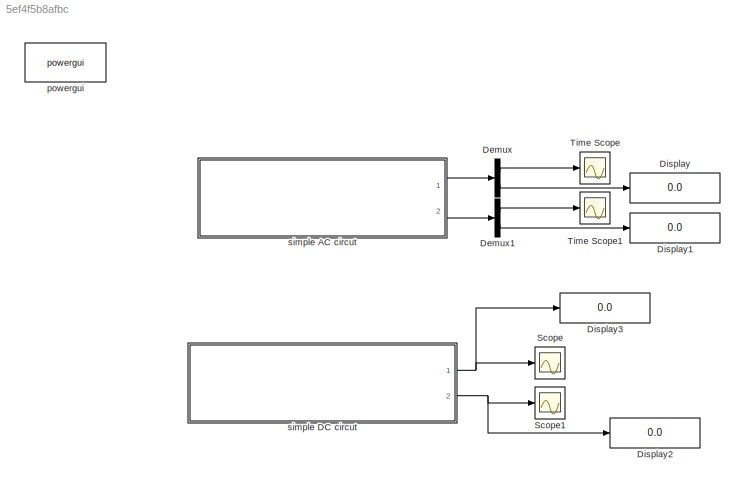
MODEL slx_5ef4f5b8afbc
KIND model
CONFIG AbsTol = auto
CONFIG EnableMultiTasking = off
CONFIG FixedStep = 1e-4
CONFIG MaxStep = 1e-4
CONFIG MinStep = auto
CONFIG RelTol = 1e-3
CONFIG SampleTimeConstraint = Unconstrained
CONFIG SolverName = FixedStepDiscrete
CONFIG StartTime = 0.0
CONFIG StopTime = 0.1
BLOCK [Demux] Demux
  Outputs = 2
  Ports = [1, 2]
BLOCK [Demux] Demux1
  Outputs = 2
  Ports = [1, 2]
BLOCK [Display] Display
  Decimation = 1
  Ports = [1]
BLOCK [Display] Display1
  Decimation = 1
  Ports = [1]
BLOCK [Display] Display2
  Decimation = 1
  Ports = [1]
BLOCK [Display] Display3
  Decimation = 1
  Ports = [1]
BLOCK [Scope] Scope
  Floating = off
  NumInputPorts = 1
  Ports = [1]
  ScopeSpecificationString = Simulink.scopes.TimeScopeBlockCfg('CurrentConfiguration', extmgr.ConfigurationSet(extmgr.Configuration('Core','General UI',true),extmgr.Configuration('Core','Source UI',true),extmgr.Configuration('Sources','WiredSimulink',true,'DataLoggingVariableName','ScopeData2'),extmgr.Configuration('Visuals','Time Domain',true),extmgr.Configuration('Tools','Plot Navigation',true),extmgr.Configuration('Tools',...<+40ch>
BLOCK [Scope] Scope1
  Floating = off
  NumInputPorts = 1
  Ports = [1]
  ScopeSpecificationString = Simulink.scopes.TimeScopeBlockCfg('CurrentConfiguration', extmgr.ConfigurationSet(extmgr.Configuration('Core','General UI',true),extmgr.Configuration('Core','Source UI',true),extmgr.Configuration('Sources','WiredSimulink',true,'DataLoggingVariableName','ScopeData3'),extmgr.Configuration('Visuals','Time Domain',true),extmgr.Configuration('Tools','Plot Navigation',true),extmgr.Configuration('Tools',...<+40ch>
BLOCK [Scope] Time Scope
  DefaultConfigurationName = spbscopes.TimeScopeBlockCfg
  Floating = off
  NumInputPorts = 1
  Ports = [1]
  ScopeSpecificationString = spbscopes.TimeScopeBlockCfg('CurrentConfiguration', extmgr.ConfigurationSet(extmgr.Configuration('Core','General UI',true,'FigureColor',[0.156862745098039 0.156862745098039 0.156862745098039]),extmgr.Configuration('Core','Source UI',true),extmgr.Configuration('Sources','WiredSimulink',true),extmgr.Configuration('Visuals','Time Domain',true,'DisplayPropertyDefaults',struct('MinYLimReal','-12.5','Ma...<+1377ch>
  UserDataPersistent = on
BLOCK [Scope] Time Scope1
  DefaultConfigurationName = spbscopes.TimeScopeBlockCfg
  Floating = off
  NumInputPorts = 1
  Ports = [1]
  ScopeSpecificationString = spbscopes.TimeScopeBlockCfg('CurrentConfiguration', extmgr.ConfigurationSet(extmgr.Configuration('Core','General UI',true,'FigureColor',[0.156862745098039 0.156862745098039 0.156862745098039]),extmgr.Configuration('Core','Source UI',true),extmgr.Configuration('Sources','WiredSimulink',true,'DataLoggingVariableName','ScopeData1'),extmgr.Configuration('Visuals','Time Domain',true,'DisplayPropertyDef...<+1475ch>
  UserDataPersistent = on
BLOCK [Reference] powergui  REF=spspowerguiLib/powergui
  Ports = []
  Priority = 1
  SourceBlock = spspowerguiLib/powergui
  SourceProductBaseCode = PS
  SourceType = PSB option menu block
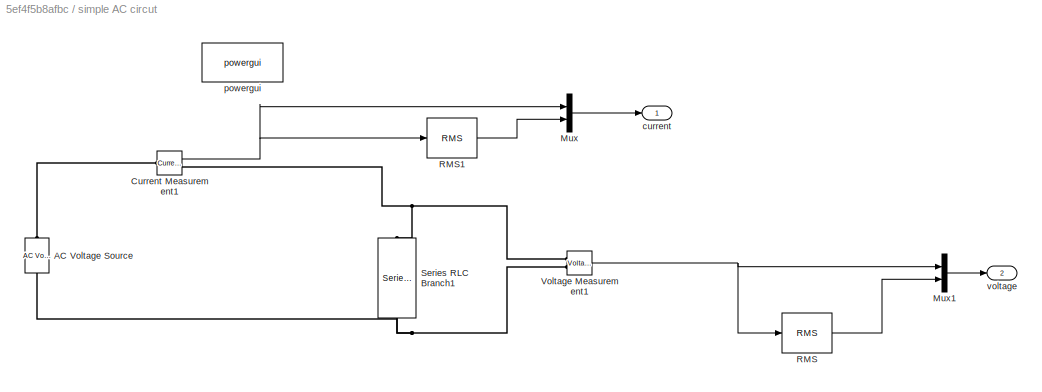
BLOCK [SubSystem] simple AC circut
  Ports = [0, 2]
  RequestExecContextInheritance = off
BLOCK [Reference] simple AC circut/AC Voltage Source  REF=spsACVoltageSourceLib/AC Voltage Source
  Ports = [0, 0, 0, 0, 0, 1, 1]
  SourceBlock = spsACVoltageSourceLib/AC Voltage Source
  SourceProductBaseCode = PS
  SourceType = AC Voltage Source
BLOCK [Reference] simple AC circut/Current Measurement1  REF=spsCurrentMeasurementLib/Current Measurement
  Ports = [0, 1, 0, 0, 0, 1, 1]
  SourceBlock = spsCurrentMeasurementLib/Current Measurement
  SourceProductBaseCode = PS
  SourceType = Current Measurement
  UserDataPersistent = on
BLOCK [Mux] simple AC circut/Mux
  DisplayOption = bar
  Inputs = 2
  Ports = [2, 1]
BLOCK [Mux] simple AC circut/Mux1
  DisplayOption = bar
  Inputs = 2
  Ports = [2, 1]
BLOCK [Reference] simple AC circut/RMS  REF=spsRMSLib/RMS
  Ports = [1, 1]
  SourceBlock = spsRMSLib/RMS
  SourceProductBaseCode = PS
  SourceType = RMS
BLOCK [Reference] simple AC circut/RMS1  REF=spsRMSLib/RMS
  Ports = [1, 1]
  SourceBlock = spsRMSLib/RMS
  SourceProductBaseCode = PS
  SourceType = RMS
BLOCK [Reference] simple AC circut/Series RLC Branch1  REF=spsSeriesRLCBranchLib/Series RLC Branch
  NameLocation = left
  Ports = [0, 0, 0, 0, 0, 1, 1]
  SourceBlock = spsSeriesRLCBranchLib/Series RLC Branch
  SourceProductBaseCode = PS
  SourceType = Series RLC Branch
BLOCK [Reference] simple AC circut/Voltage Measurement1  REF=spsVoltageMeasurementLib/Voltage Measurement
  Ports = [0, 1, 0, 0, 0, 2]
  SourceBlock = spsVoltageMeasurementLib/Voltage Measurement
  SourceProductBaseCode = PS
  SourceType = Voltage Measurement
  UserDataPersistent = on
BLOCK [Outport] simple AC circut/current
BLOCK [Reference] simple AC circut/powergui  REF=spspowerguiLib/powergui
  Ports = []
  Priority = 1
  SourceBlock = spspowerguiLib/powergui
  SourceProductBaseCode = PS
  SourceType = PSB option menu block
BLOCK [Outport] simple AC circut/voltage
  Port = 2
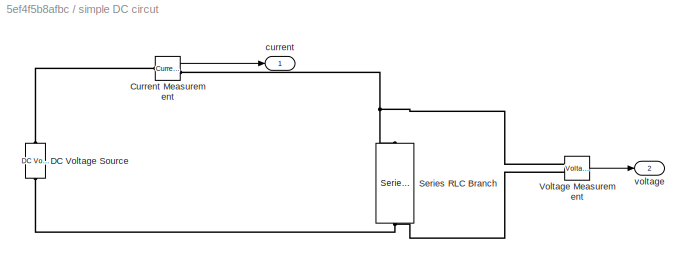
BLOCK [SubSystem] simple DC circut
  Ports = [0, 2]
  RequestExecContextInheritance = off
BLOCK [Reference] simple DC circut/Current Measurement  REF=spsCurrentMeasurementLib/Current Measurement
  Ports = [0, 1, 0, 0, 0, 1, 1]
  SourceBlock = spsCurrentMeasurementLib/Current Measurement
  SourceProductBaseCode = PS
  SourceType = Current Measurement
  UserDataPersistent = on
BLOCK [Reference] simple DC circut/DC Voltage Source  REF=spsDCVoltageSourceLib/DC Voltage Source
  Ports = [0, 0, 0, 0, 0, 1, 1]
  SourceBlock = spsDCVoltageSourceLib/DC Voltage Source
  SourceProductBaseCode = PS
  SourceType = DC Voltage Source
BLOCK [Reference] simple DC circut/Series RLC Branch  REF=spsSeriesRLCBranchLib/Series RLC Branch
  NameLocation = left
  Ports = [0, 0, 0, 0, 0, 1, 1]
  SourceBlock = spsSeriesRLCBranchLib/Series RLC Branch
  SourceProductBaseCode = PS
  SourceType = Series RLC Branch
BLOCK [Reference] simple DC circut/Voltage Measurement  REF=spsVoltageMeasurementLib/Voltage Measurement
  Ports = [0, 1, 0, 0, 0, 2]
  SourceBlock = spsVoltageMeasurementLib/Voltage Measurement
  SourceProductBaseCode = PS
  SourceType = Voltage Measurement
  UserDataPersistent = on
BLOCK [Outport] simple DC circut/current
BLOCK [Outport] simple DC circut/voltage
  Port = 2
LINE Demux1:1 -> Time Scope1:1
LINE Demux1:2 -> Display1:1
LINE Demux:1 -> Time Scope:1
LINE Demux:2 -> Display:1
NET simple AC circut/Current Measurement1:1 -> simple AC circut/Mux:1, simple AC circut/RMS1:1
LINE simple AC circut/Mux1:1 -> simple AC circut/voltage:1
LINE simple AC circut/Mux:1 -> simple AC circut/current:1
LINE simple AC circut/RMS1:1 -> simple AC circut/Mux:2
LINE simple AC circut/RMS:1 -> simple AC circut/Mux1:2
NET simple AC circut/Voltage Measurement1:1 -> simple AC circut/Mux1:1, simple AC circut/RMS:1
LINE simple AC circut:1 -> Demux:1
LINE simple AC circut:2 -> Demux1:1
LINE simple DC circut/Current Measurement:1 -> simple DC circut/current:1
LINE simple DC circut/Voltage Measurement:1 -> simple DC circut/voltage:1
NET simple DC circut:1 -> Display3:1, Scope:1
NET simple DC circut:2 -> Display2:1, Scope1:1
PNET net1: simple AC circut/AC Voltage Source:LConn1 -- simple AC circut/Series RLC Branch1:RConn1 -- simple AC circut/Voltage Measurement1:LConn2
PLINE simple AC circut/AC Voltage Source:RConn1 -- simple AC circut/Current Measurement1:LConn1
PNET net2: simple AC circut/Current Measurement1:RConn1 -- simple AC circut/Series RLC Branch1:LConn1 -- simple AC circut/Voltage Measurement1:LConn1
PLINE simple DC circut/Current Measurement:LConn1 -- simple DC circut/DC Voltage Source:RConn1
PNET net3: simple DC circut/Current Measurement:RConn1 -- simple DC circut/Series RLC Branch:LConn1 -- simple DC circut/Voltage Measurement:LConn1
PNET net4: simple DC circut/DC Voltage Source:LConn1 -- simple DC circut/Series RLC Branch:RConn1 -- simple DC circut/Voltage Measurement:LConn2
note: NET lines group one-source signal fan-out (src -> all destinations, sorted); 1:1 wires keep LINE; PNET lines group multi-terminal physical nets as a canonical sorted terminal list (undirected conserving connections); 2-terminal nets keep the pairwise PLINE form
